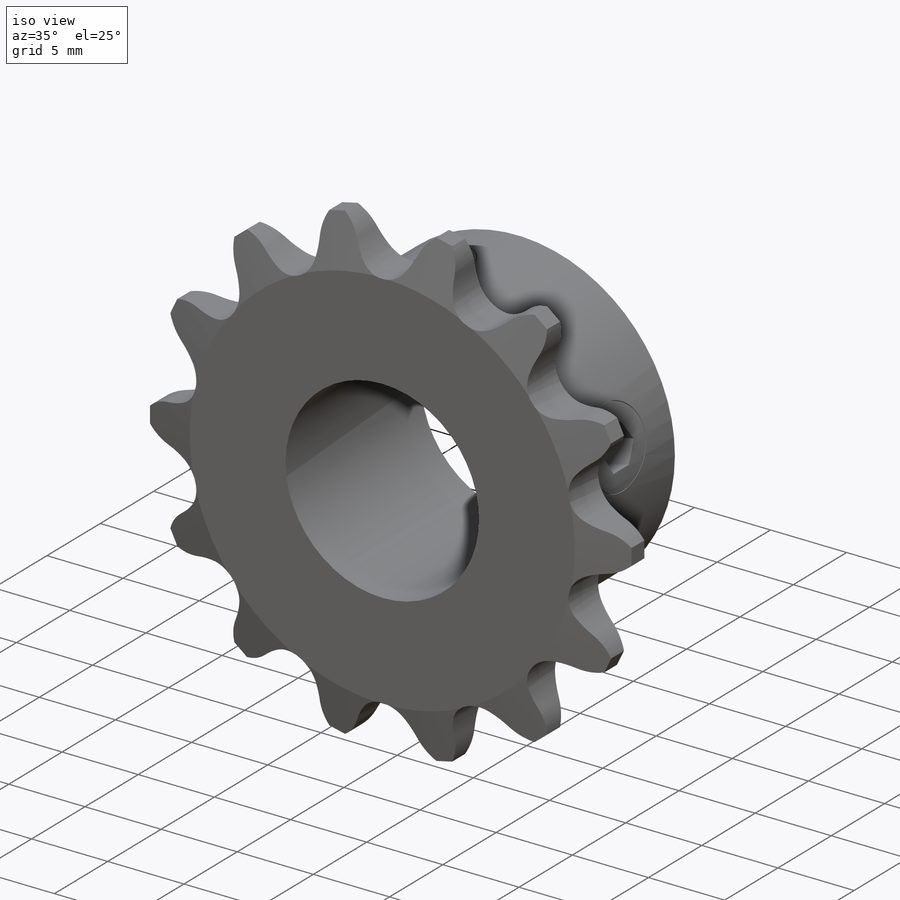
[diagram: iso view]
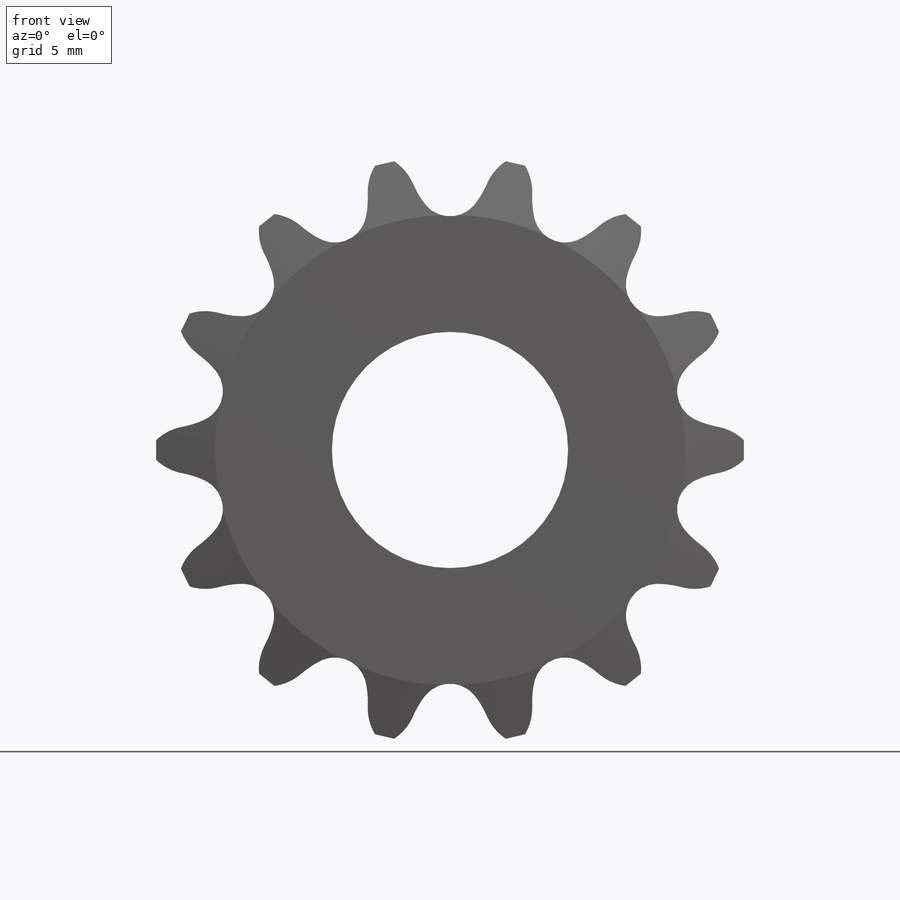
[diagram: front view]
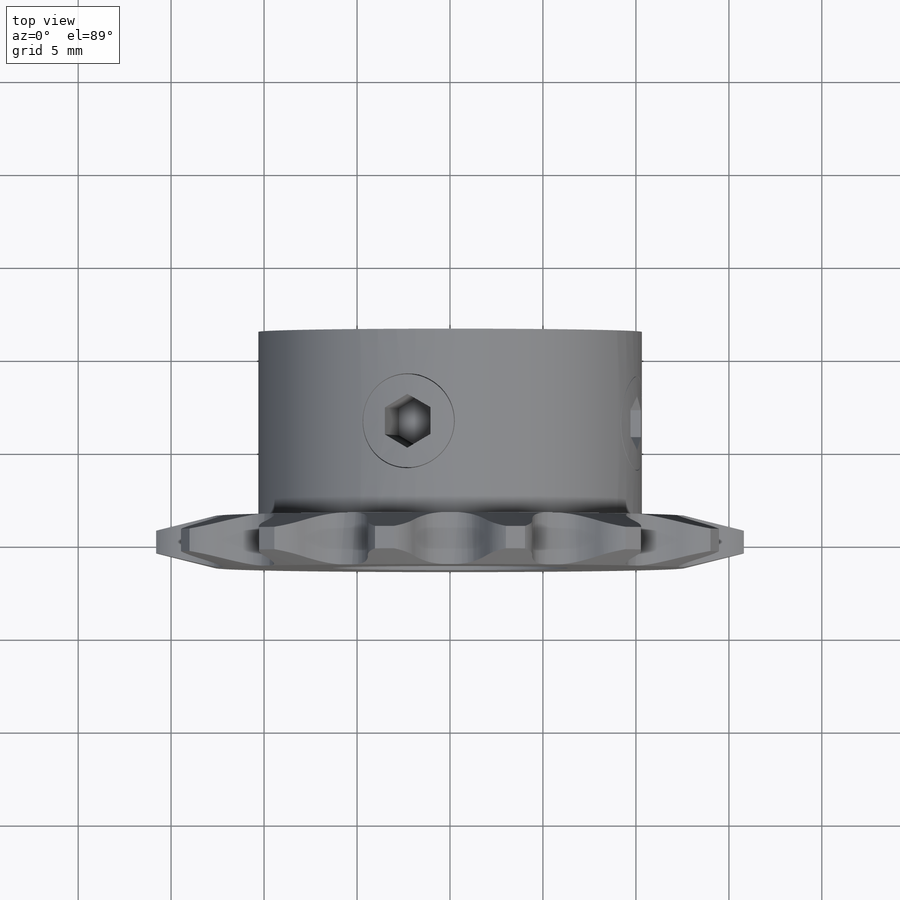
[diagram: top view]
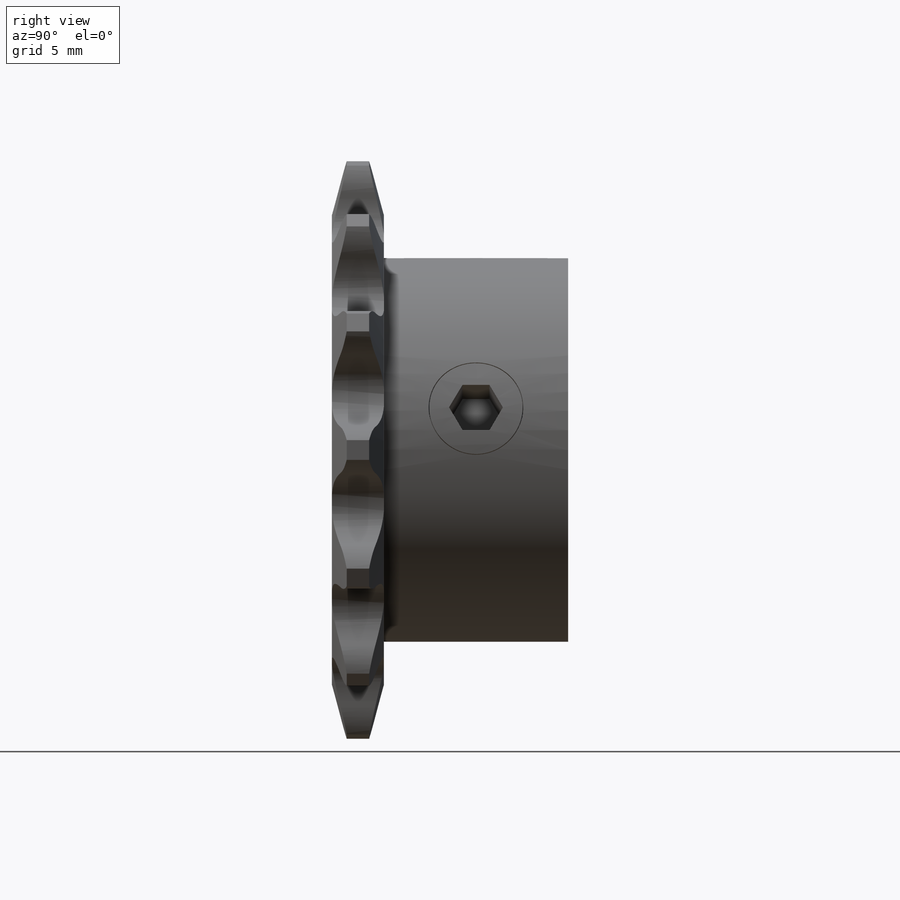
[diagram: right view]
SOLIDWORKS PART (.sldprt)
format: sldprt  version: not decoded by parser v0  size: 555,520 bytes
history: native  units: mm
features: sketch x11, cut_extrude x5, revolve x2, pattern_circular x2, plane x2, material x1, extrude x1 (+11 scaffold rows collapsed)
feature tree (35):
  scaffold x11  (default folders/planes/origin — collapsed)
  material  "Material <not specified>"
  sketch  "Sprocket-BaseSketch"  dims[Hub Surface=1.397mm RightSide (1)=~0.79375mm RightSide (2)=3.175mm OD=~15.815584mm LeftSide (1)=~0.79375mm LeftSide (2)=3.175mm Tooth Width=2.794mm]
  revolve  "25 (04C) ANSI (ISO) Chain Number, 1.123in P.D."  Angle=360deg
  sketch  "Tooth-Sketch"
  cut_extrude  "Tooth-Cut, Number of teeth: 14"  Depth=25.4mm
  pattern_circular  "Tooth Pattern, 14 / 14"  Count=14 Angle=25.714286deg
  sketch  "Sketch3"  dims[Hub Mounting=1.397mm Hub OD=~10.31875mm Hub Width=9.906mm]
  revolve  "Hub-Revolve1"  Angle=360deg
  sketch  "Sketch4"  dims[Bore Diameter =12.7mm]
  cut_extrude  "Cut-Extrude1"  [1 undecoded]
  sketch  "Sketch5"
  plane  "Plane1"
  sketch  "Sketch7"
  plane  "Plane2"
  sketch  "Sketch8"
  cut_extrude  "Cut-Extrude2"  Depth=2.54mm
  sketch  "Sketch9"
  extrude  "Extrude1"  Depth=2.54mm
  sketch  "Sketch10"
  cut_extrude  "Cut-Extrude3"  Depth=0.635mm
  pattern_circular  "CirPattern1"  Count=2 Angle=90deg
  sketch  "Sketch11"
  cut_extrude  "Cut-Extrude4"  [1 undecoded]
  sketch  "Sketch12"  dims[D1=~1.30175mm D2=~1.30175mm]
decode coverage: 12 of 21 modeling features carry decoded parameters
note: ~ marks probable driven/reference dimensions
note: 2 parameter values undecoded
note: suppression state not decoded; provenance and decode notes live in map.json
